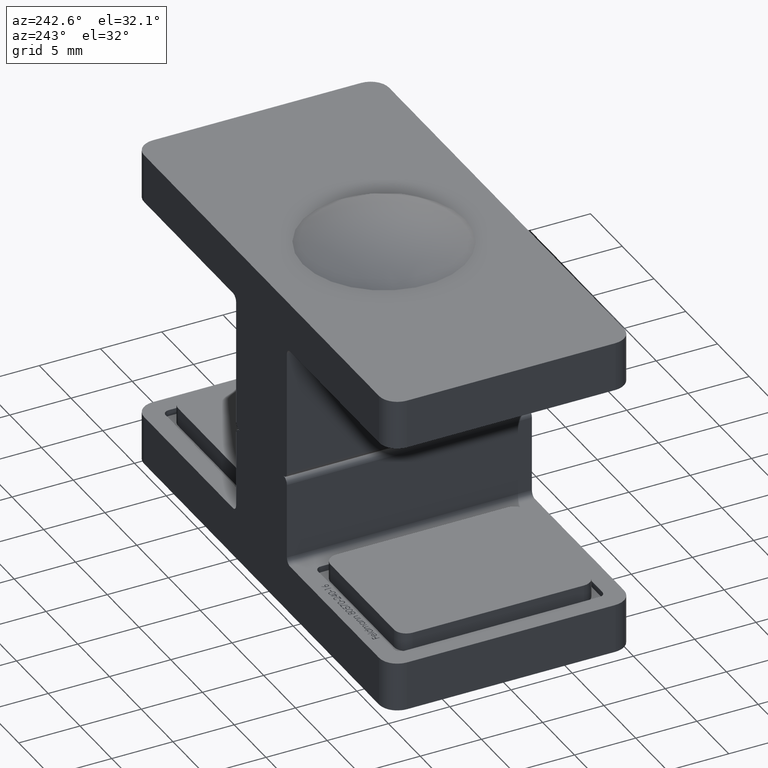
[diagram: clean part render]
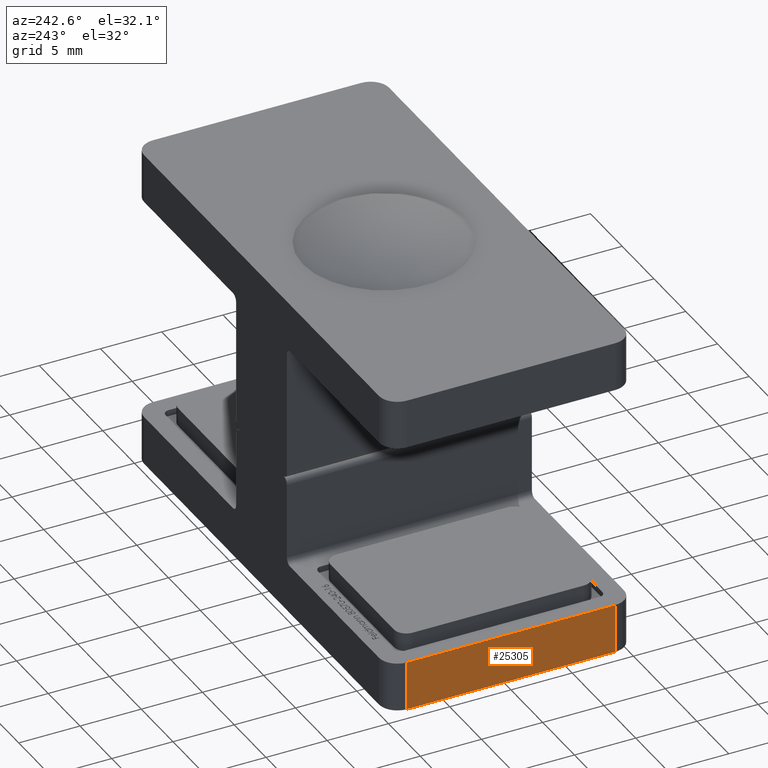
[diagram: same view with one face highlighted and labeled with its STEP entity id]
A machine part, auxiliary view. The second image highlights one B-rep face of the part: STEP entity #25305.
In plain terms, the highlighted planar face has unit normal (1, 0, 0).
Its self-contained STEP definition (entity closure, byte-faithful):
#87 = CARTESIAN_POINT ( 'NONE',  ( -19.99999999999999289, 8.499999999999998224, 4.000000000000000000 ) ) ;
#554 = AXIS2_PLACEMENT_3D ( 'NONE', #21507, #32020, #13018 ) ;
#1295 = CARTESIAN_POINT ( 'NONE',  ( -19.99999999999999289, 9.999999999999998224, 0.000000000000000000 ) ) ;
#1320 = VECTOR ( 'NONE', #20440, 1000.000000000000000 ) ;
#1371 = EDGE_CURVE ( 'NONE', #17980, #21300, #22929, .T. ) ;
#1877 = EDGE_LOOP ( 'NONE', ( #16497, #10231, #11447, #8367 ) ) ;
#5242 = DIRECTION ( 'NONE',  ( 0.000000000000000000, 0.000000000000000000, -1.000000000000000000 ) ) ;
#6650 = DIRECTION ( 'NONE',  ( 0.000000000000000000, -0.000000000000000000, 1.000000000000000000 ) ) ;
#6825 = VECTOR ( 'NONE', #6650, 1000.000000000000000 ) ;
#6994 = DIRECTION ( 'NONE',  ( 1.734723475976806848E-16, -1.000000000000000000, 0.000000000000000000 ) ) ;
#7349 = CARTESIAN_POINT ( 'NONE',  ( -19.99999999999999289, 9.999999999999998224, 4.000000000000000000 ) ) ;
#7387 = CARTESIAN_POINT ( 'NONE',  ( -19.99999999999998934, -8.500000000000003553, 0.000000000000000000 ) ) ;
#8367 = ORIENTED_EDGE ( 'NONE', *, *, #24517, .T. ) ;
#8867 = FACE_OUTER_BOUND ( 'NONE', #1877, .T. ) ;
#10227 = EDGE_CURVE ( 'NONE', #16543, #10248, #22695, .T. ) ;
#10231 = ORIENTED_EDGE ( 'NONE', *, *, #22943, .T. ) ;
#10248 = VERTEX_POINT ( 'NONE', #12808 ) ;
#11447 = ORIENTED_EDGE ( 'NONE', *, *, #10227, .F. ) ;
#12808 = CARTESIAN_POINT ( 'NONE',  ( -19.99999999999998934, -8.500000000000003553, 4.000000000000000000 ) ) ;
#13018 = DIRECTION ( 'NONE',  ( -1.734723475976806848E-16, 1.000000000000000000, 0.000000000000000000 ) ) ;
#13943 = CARTESIAN_POINT ( 'NONE',  ( -19.99999999999999289, 8.499999999999998224, 0.000000000000000000 ) ) ;
#16319 = VECTOR ( 'NONE', #6994, 1000.000000000000000 ) ;
#16497 = ORIENTED_EDGE ( 'NONE', *, *, #1371, .T. ) ;
#16543 = VERTEX_POINT ( 'NONE', #87 ) ;
#17529 = CARTESIAN_POINT ( 'NONE',  ( -19.99999999999998934, -8.500000000000003553, 4.000000000000000000 ) ) ;
#17980 = VERTEX_POINT ( 'NONE', #13943 ) ;
#18596 = VECTOR ( 'NONE', #5242, 1000.000000000000000 ) ;
#20440 = DIRECTION ( 'NONE',  ( 1.734723475976806848E-16, -1.000000000000000000, 0.000000000000000000 ) ) ;
#21300 = VERTEX_POINT ( 'NONE', #7387 ) ;
#21507 = CARTESIAN_POINT ( 'NONE',  ( -19.99999999999999289, 9.999999999999998224, 4.000000000000000000 ) ) ;
#22695 = LINE ( 'NONE', #7349, #16319 ) ;
#22929 = LINE ( 'NONE', #1295, #1320 ) ;
#22943 = EDGE_CURVE ( 'NONE', #21300, #10248, #25065, .T. ) ;
#24517 = EDGE_CURVE ( 'NONE', #16543, #17980, #33920, .T. ) ;
#25065 = LINE ( 'NONE', #17529, #6825 ) ;
#25305 = ADVANCED_FACE ( 'NONE', ( #8867 ), #32361, .F. ) ;
#27079 = CARTESIAN_POINT ( 'NONE',  ( -19.99999999999999289, 8.499999999999998224, 4.000000000000000000 ) ) ;
#32020 = DIRECTION ( 'NONE',  ( 1.000000000000000000, 1.734723475976806848E-16, -0.000000000000000000 ) ) ;
#32361 = PLANE ( 'NONE',  #554 ) ;
#33920 = LINE ( 'NONE', #27079, #18596 ) ;